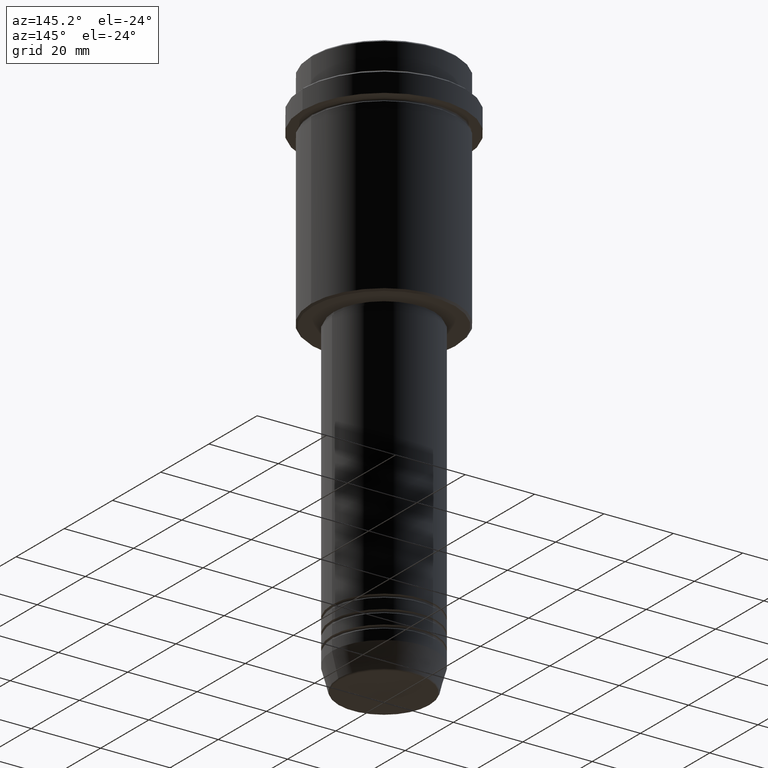
[diagram: clean part render]
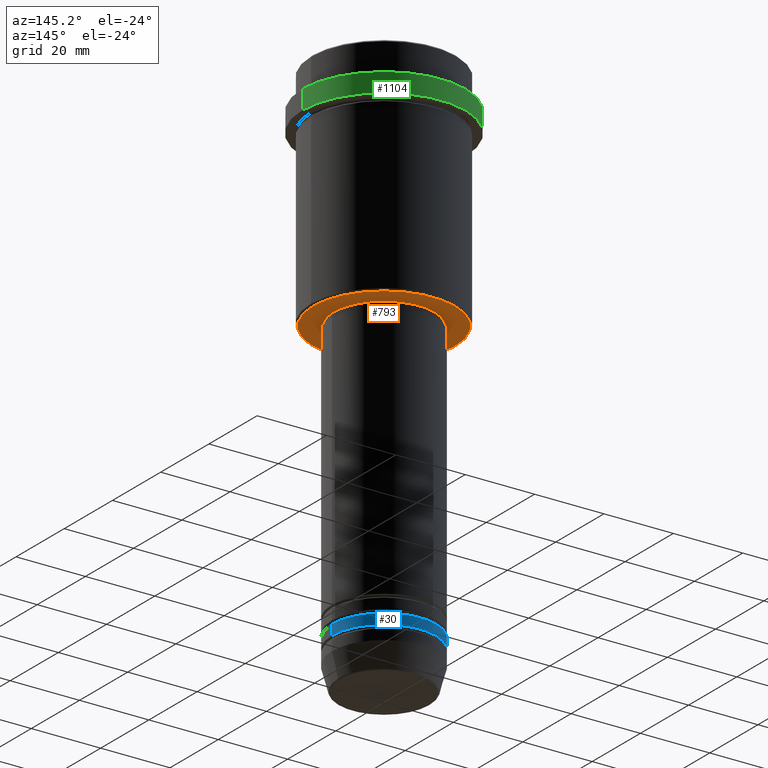
[diagram: same view with three faces highlighted in distinct colors, each labeled with its STEP entity id]
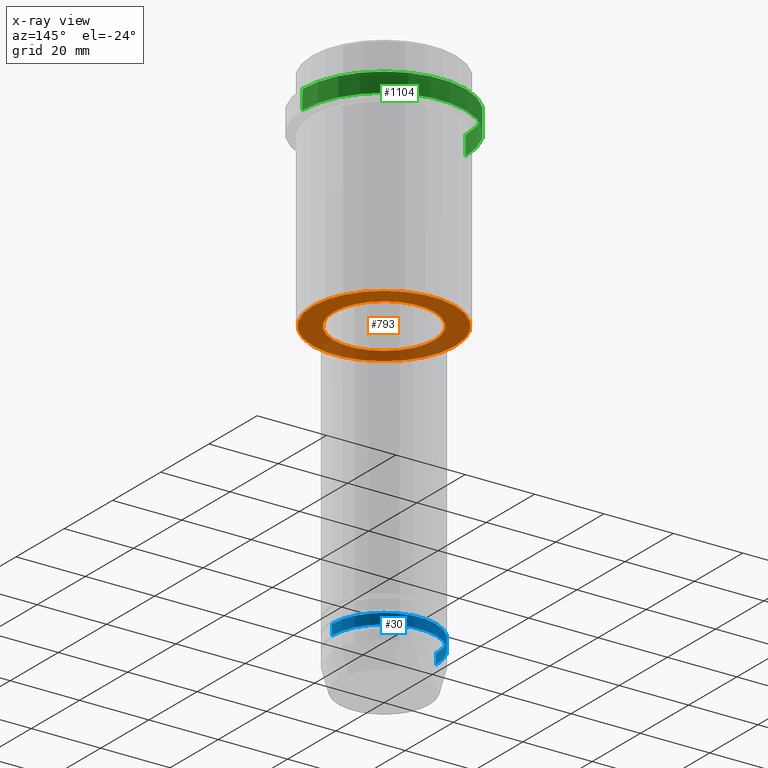
[diagram: x-ray of the same camera — body ghosted, the three highlighted faces saturated]
A machine part, auxiliary view with three faces highlighted in distinct colors.
The next image is the same camera in x-ray (body ghosted, the three faces saturated) — at least one of them is partly hidden behind the body in this view.
Their STEP definitions:

[orange] entity #793 — the highlighted planar face has unit normal (0, 0, -1).
#14 = CARTESIAN_POINT ( 'NONE',  ( 0.000000000000000000, 0.000000000000000000, -65.00000000000000000 ) ) ;
#24 = EDGE_CURVE ( 'NONE', #950, #1347, #224, .T. ) ;
#28 = FACE_BOUND ( 'NONE', #1369, .T. ) ;
#48 = DIRECTION ( 'NONE',  ( -0.000000000000000000, -0.000000000000000000, 1.000000000000000000 ) ) ;
#159 = PLANE ( 'NONE',  #859 ) ;
#224 = CIRCLE ( 'NONE', #1158, 20.49999999999998934 ) ;
#258 = DIRECTION ( 'NONE',  ( -1.000000000000000000, 0.000000000000000000, 0.000000000000000000 ) ) ;
#272 = AXIS2_PLACEMENT_3D ( 'NONE', #360, #1111, #348 ) ;
#348 = DIRECTION ( 'NONE',  ( -1.000000000000000000, 0.000000000000000000, 0.000000000000000000 ) ) ;
#349 = DIRECTION ( 'NONE',  ( 1.000000000000000000, 0.000000000000000000, 0.000000000000000000 ) ) ;
#360 = CARTESIAN_POINT ( 'NONE',  ( 0.000000000000000000, 0.000000000000000000, -65.00000000000000000 ) ) ;
#390 = EDGE_CURVE ( 'NONE', #1351, #485, #996, .T. ) ;
#410 = CARTESIAN_POINT ( 'NONE',  ( -14.49999999999999467, 1.775737858763661620E-15, -65.00000000000000000 ) ) ;
#485 = VERTEX_POINT ( 'NONE', #487 ) ;
#487 = CARTESIAN_POINT ( 'NONE',  ( 14.49999999999999467, 0.000000000000000000, -65.00000000000000000 ) ) ;
#501 = AXIS2_PLACEMENT_3D ( 'NONE', #14, #1216, #349 ) ;
#587 = FACE_OUTER_BOUND ( 'NONE', #759, .T. ) ;
#603 = CARTESIAN_POINT ( 'NONE',  ( 0.000000000000000000, 21.00000000000000000, -65.00000000000000000 ) ) ;
#645 = ORIENTED_EDGE ( 'NONE', *, *, #811, .T. ) ;
#683 = DIRECTION ( 'NONE',  ( 1.000000000000000000, 0.000000000000000000, 0.000000000000000000 ) ) ;
#731 = CARTESIAN_POINT ( 'NONE',  ( -20.49999999999998934, 2.541142108230757480E-15, -65.00000000000000000 ) ) ;
#740 = ORIENTED_EDGE ( 'NONE', *, *, #390, .T. ) ;
#759 = EDGE_LOOP ( 'NONE', ( #932, #884 ) ) ;
#793 = ADVANCED_FACE ( 'NONE', ( #587, #28 ), #159, .T. ) ;
#794 = DIRECTION ( 'NONE',  ( 0.000000000000000000, 0.000000000000000000, -1.000000000000000000 ) ) ;
#798 = CIRCLE ( 'NONE', #272, 20.49999999999998934 ) ;
#811 = EDGE_CURVE ( 'NONE', #485, #1351, #1024, .T. ) ;
#817 = AXIS2_PLACEMENT_3D ( 'NONE', #927, #48, #683 ) ;
#859 = AXIS2_PLACEMENT_3D ( 'NONE', #603, #1018, #1359 ) ;
#884 = ORIENTED_EDGE ( 'NONE', *, *, #1266, .T. ) ;
#927 = CARTESIAN_POINT ( 'NONE',  ( 0.000000000000000000, 0.000000000000000000, -65.00000000000000000 ) ) ;
#932 = ORIENTED_EDGE ( 'NONE', *, *, #24, .T. ) ;
#950 = VERTEX_POINT ( 'NONE', #1149 ) ;
#996 = CIRCLE ( 'NONE', #501, 14.49999999999999467 ) ;
#1018 = DIRECTION ( 'NONE',  ( 0.000000000000000000, 0.000000000000000000, -1.000000000000000000 ) ) ;
#1024 = CIRCLE ( 'NONE', #817, 14.49999999999999467 ) ;
#1111 = DIRECTION ( 'NONE',  ( 0.000000000000000000, 0.000000000000000000, -1.000000000000000000 ) ) ;
#1149 = CARTESIAN_POINT ( 'NONE',  ( 20.49999999999998934, 0.000000000000000000, -65.00000000000000000 ) ) ;
#1158 = AXIS2_PLACEMENT_3D ( 'NONE', #1362, #794, #258 ) ;
#1216 = DIRECTION ( 'NONE',  ( -0.000000000000000000, -0.000000000000000000, 1.000000000000000000 ) ) ;
#1266 = EDGE_CURVE ( 'NONE', #1347, #950, #798, .T. ) ;
#1347 = VERTEX_POINT ( 'NONE', #731 ) ;
#1351 = VERTEX_POINT ( 'NONE', #410 ) ;
#1359 = DIRECTION ( 'NONE',  ( -1.000000000000000000, 0.000000000000000000, -0.000000000000000000 ) ) ;
#1362 = CARTESIAN_POINT ( 'NONE',  ( 0.000000000000000000, 0.000000000000000000, -65.00000000000000000 ) ) ;
#1369 = EDGE_LOOP ( 'NONE', ( #645, #740 ) ) ;

[blue] entity #30 — the highlighted cylindrical surface (partial cylindrical patch) has radius 15 mm, axis along (-0, -0, 1).
#30 = ADVANCED_FACE ( 'NONE', ( #489 ), #930, .T. ) ;
#76 = CARTESIAN_POINT ( 'NONE',  ( -15.00000000000000000, 1.836970198721029589E-15, 0.000000000000000000 ) ) ;
#81 = AXIS2_PLACEMENT_3D ( 'NONE', #1377, #396, #631 ) ;
#93 = DIRECTION ( 'NONE',  ( 1.000000000000000000, 0.000000000000000000, 0.000000000000000000 ) ) ;
#122 = CARTESIAN_POINT ( 'NONE',  ( 0.000000000000000000, 0.000000000000000000, -145.9999999999999147 ) ) ;
#153 = EDGE_CURVE ( 'NONE', #414, #671, #1062, .T. ) ;
#155 = VECTOR ( 'NONE', #521, 1000.000000000000000 ) ;
#211 = EDGE_CURVE ( 'NONE', #1229, #414, #641, .T. ) ;
#273 = AXIS2_PLACEMENT_3D ( 'NONE', #1016, #1023, #494 ) ;
#311 = DIRECTION ( 'NONE',  ( -0.000000000000000000, -0.000000000000000000, 1.000000000000000000 ) ) ;
#396 = DIRECTION ( 'NONE',  ( -0.000000000000000000, -0.000000000000000000, 1.000000000000000000 ) ) ;
#414 = VERTEX_POINT ( 'NONE', #604 ) ;
#489 = FACE_OUTER_BOUND ( 'NONE', #527, .T. ) ;
#494 = DIRECTION ( 'NONE',  ( 1.000000000000000000, 0.000000000000000000, 0.000000000000000000 ) ) ;
#521 = DIRECTION ( 'NONE',  ( -0.000000000000000000, -0.000000000000000000, 1.000000000000000000 ) ) ;
#527 = EDGE_LOOP ( 'NONE', ( #629, #607, #1301, #1335 ) ) ;
#584 = CARTESIAN_POINT ( 'NONE',  ( 15.00000000000000000, 0.000000000000000000, -148.9999999999999147 ) ) ;
#604 = CARTESIAN_POINT ( 'NONE',  ( -15.00000000000000000, 1.836970198721029589E-15, -148.9999999999999147 ) ) ;
#607 = ORIENTED_EDGE ( 'NONE', *, *, #153, .T. ) ;
#629 = ORIENTED_EDGE ( 'NONE', *, *, #211, .T. ) ;
#631 = DIRECTION ( 'NONE',  ( 1.000000000000000000, 0.000000000000000000, 0.000000000000000000 ) ) ;
#634 = VERTEX_POINT ( 'NONE', #868 ) ;
#641 = CIRCLE ( 'NONE', #81, 15.00000000000000000 ) ;
#651 = LINE ( 'NONE', #749, #1232 ) ;
#671 = VERTEX_POINT ( 'NONE', #1329 ) ;
#749 = CARTESIAN_POINT ( 'NONE',  ( 15.00000000000000000, 0.000000000000000000, 0.000000000000000000 ) ) ;
#868 = CARTESIAN_POINT ( 'NONE',  ( 15.00000000000000000, 0.000000000000000000, -145.9999999999999147 ) ) ;
#930 = CYLINDRICAL_SURFACE ( 'NONE', #273, 15.00000000000000000 ) ;
#1016 = CARTESIAN_POINT ( 'NONE',  ( 0.000000000000000000, 0.000000000000000000, 0.000000000000000000 ) ) ;
#1023 = DIRECTION ( 'NONE',  ( -0.000000000000000000, -0.000000000000000000, 1.000000000000000000 ) ) ;
#1062 = LINE ( 'NONE', #76, #155 ) ;
#1066 = CIRCLE ( 'NONE', #1178, 15.00000000000000000 ) ;
#1075 = EDGE_CURVE ( 'NONE', #634, #671, #1066, .T. ) ;
#1140 = EDGE_CURVE ( 'NONE', #1229, #634, #651, .T. ) ;
#1178 = AXIS2_PLACEMENT_3D ( 'NONE', #122, #311, #93 ) ;
#1185 = DIRECTION ( 'NONE',  ( -0.000000000000000000, -0.000000000000000000, 1.000000000000000000 ) ) ;
#1229 = VERTEX_POINT ( 'NONE', #584 ) ;
#1232 = VECTOR ( 'NONE', #1185, 1000.000000000000000 ) ;
#1301 = ORIENTED_EDGE ( 'NONE', *, *, #1075, .F. ) ;
#1329 = CARTESIAN_POINT ( 'NONE',  ( -15.00000000000000000, 1.836970198721029589E-15, -145.9999999999999147 ) ) ;
#1335 = ORIENTED_EDGE ( 'NONE', *, *, #1140, .F. ) ;
#1377 = CARTESIAN_POINT ( 'NONE',  ( 0.000000000000000000, 0.000000000000000000, -148.9999999999999147 ) ) ;

[green] entity #1104 — the highlighted cylindrical surface (partial cylindrical patch) has radius 23.5 mm, axis along (-0, -0, 1).
#38 = VERTEX_POINT ( 'NONE', #1355 ) ;
#64 = CARTESIAN_POINT ( 'NONE',  ( 23.50000000000000000, 0.000000000000000000, 0.000000000000000000 ) ) ;
#80 = VECTOR ( 'NONE', #692, 1000.000000000000000 ) ;
#100 = VERTEX_POINT ( 'NONE', #746 ) ;
#139 = CARTESIAN_POINT ( 'NONE',  ( 0.000000000000000000, 0.000000000000000000, -15.00000000000000000 ) ) ;
#170 = CIRCLE ( 'NONE', #955, 23.50000000000000000 ) ;
#195 = ORIENTED_EDGE ( 'NONE', *, *, #1212, .T. ) ;
#268 = DIRECTION ( 'NONE',  ( 1.000000000000000000, 0.000000000000000000, 0.000000000000000000 ) ) ;
#387 = DIRECTION ( 'NONE',  ( 1.000000000000000000, 0.000000000000000000, 0.000000000000000000 ) ) ;
#448 = DIRECTION ( 'NONE',  ( -0.000000000000000000, -0.000000000000000000, 1.000000000000000000 ) ) ;
#459 = DIRECTION ( 'NONE',  ( -0.000000000000000000, -0.000000000000000000, 1.000000000000000000 ) ) ;
#468 = DIRECTION ( 'NONE',  ( 0.000000000000000000, 0.000000000000000000, -1.000000000000000000 ) ) ;
#490 = VERTEX_POINT ( 'NONE', #1244 ) ;
#495 = ORIENTED_EDGE ( 'NONE', *, *, #1255, .F. ) ;
#496 = CARTESIAN_POINT ( 'NONE',  ( 0.000000000000000000, 0.000000000000000000, -9.500000000000000000 ) ) ;
#522 = AXIS2_PLACEMENT_3D ( 'NONE', #139, #459, #387 ) ;
#528 = VERTEX_POINT ( 'NONE', #831 ) ;
#674 = FACE_OUTER_BOUND ( 'NONE', #700, .T. ) ;
#692 = DIRECTION ( 'NONE',  ( -0.000000000000000000, -0.000000000000000000, 1.000000000000000000 ) ) ;
#700 = EDGE_LOOP ( 'NONE', ( #195, #966, #785, #495 ) ) ;
#706 = VECTOR ( 'NONE', #899, 1000.000000000000000 ) ;
#723 = LINE ( 'NONE', #1327, #706 ) ;
#746 = CARTESIAN_POINT ( 'NONE',  ( -23.50000000000000000, 2.877919977996280320E-15, -9.500000000000000000 ) ) ;
#761 = EDGE_CURVE ( 'NONE', #100, #528, #170, .T. ) ;
#785 = ORIENTED_EDGE ( 'NONE', *, *, #761, .T. ) ;
#831 = CARTESIAN_POINT ( 'NONE',  ( 23.50000000000000000, 0.000000000000000000, -9.500000000000000000 ) ) ;
#864 = DIRECTION ( 'NONE',  ( 1.000000000000000000, 0.000000000000000000, 0.000000000000000000 ) ) ;
#899 = DIRECTION ( 'NONE',  ( -0.000000000000000000, -0.000000000000000000, 1.000000000000000000 ) ) ;
#937 = CIRCLE ( 'NONE', #522, 23.50000000000000355 ) ;
#955 = AXIS2_PLACEMENT_3D ( 'NONE', #496, #468, #268 ) ;
#966 = ORIENTED_EDGE ( 'NONE', *, *, #1192, .T. ) ;
#982 = CARTESIAN_POINT ( 'NONE',  ( 0.000000000000000000, 0.000000000000000000, 0.000000000000000000 ) ) ;
#1015 = LINE ( 'NONE', #64, #80 ) ;
#1104 = ADVANCED_FACE ( 'NONE', ( #674 ), #1399, .T. ) ;
#1192 = EDGE_CURVE ( 'NONE', #38, #100, #723, .T. ) ;
#1201 = AXIS2_PLACEMENT_3D ( 'NONE', #982, #448, #864 ) ;
#1212 = EDGE_CURVE ( 'NONE', #490, #38, #937, .T. ) ;
#1244 = CARTESIAN_POINT ( 'NONE',  ( 23.50000000000000355, 0.000000000000000000, -15.00000000000000000 ) ) ;
#1255 = EDGE_CURVE ( 'NONE', #490, #528, #1015, .T. ) ;
#1327 = CARTESIAN_POINT ( 'NONE',  ( -23.50000000000000000, 2.877919977996280320E-15, 0.000000000000000000 ) ) ;
#1355 = CARTESIAN_POINT ( 'NONE',  ( -23.50000000000000711, 2.877919977996281109E-15, -15.00000000000000000 ) ) ;
#1399 = CYLINDRICAL_SURFACE ( 'NONE', #1201, 23.50000000000000000 ) ;